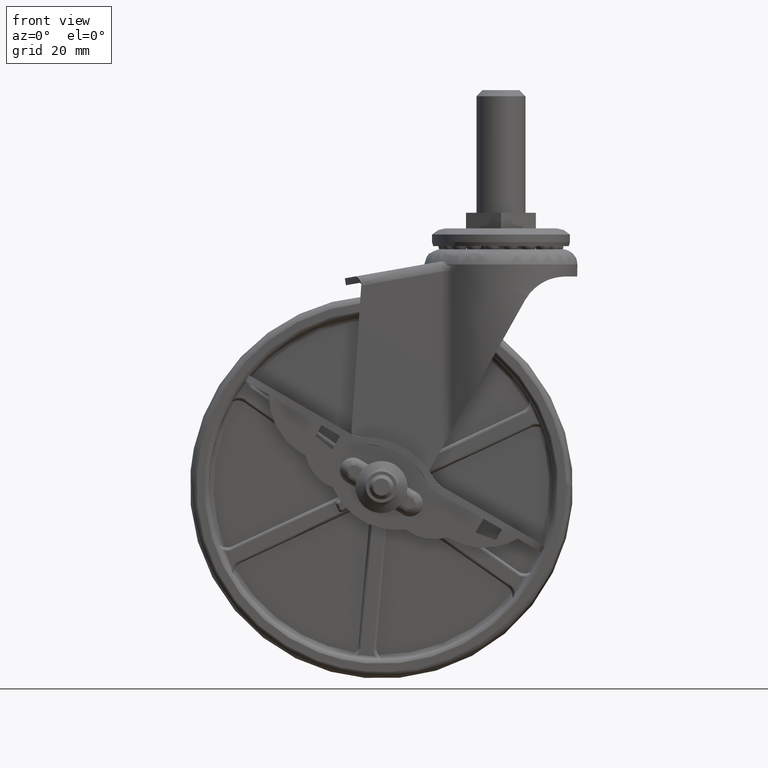
[diagram: clean part render]
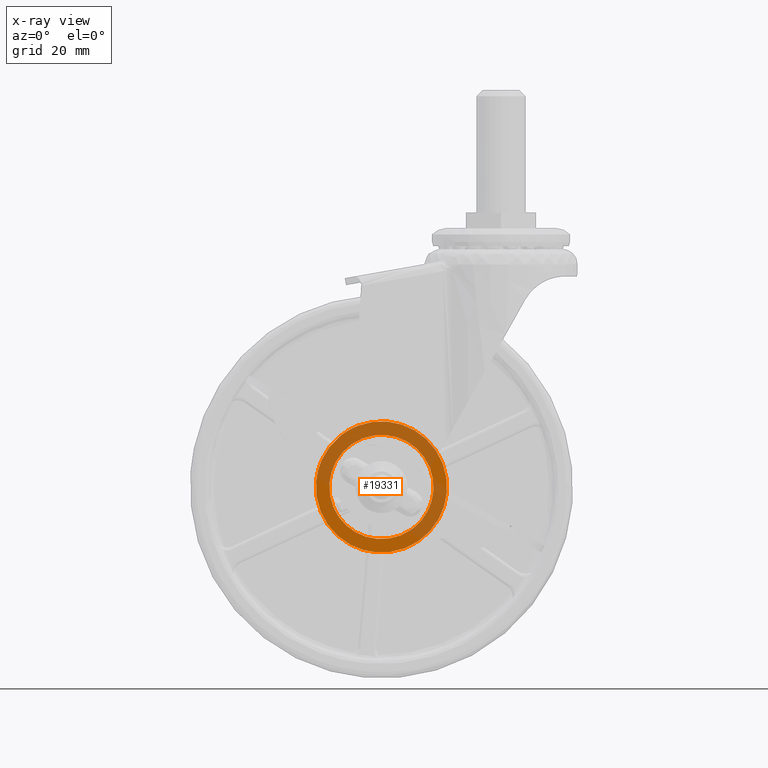
[diagram: x-ray — body ghosted, one internal face saturated and labeled with its STEP entity id]
A machine part, front view, then the same camera in x-ray: the body is ghosted and one INTERNAL B-rep face — a face not visible from any outside direction — is saturated and labeled: STEP entity #19331.
In plain terms, the highlighted face is a freeform B-spline surface patch.
Its self-contained STEP definition (entity closure, byte-faithful):
#77=CARTESIAN_POINT('',(14.056824579169060,12.500000000000000,-9.560661503433785));
#78=VERTEX_POINT('',#77);
#84=CARTESIAN_POINT('',(17.000016999999929,12.500000000000000,0.000001564431849));
#85=VERTEX_POINT('',#84);
#86=CARTESIAN_POINT('',(14.056824579169060,12.500000000000000,-9.560661503433785));
#87=CARTESIAN_POINT('',(14.830389579221370,12.500000000000011,-8.423874364035216));
#88=CARTESIAN_POINT('',(15.757445690454761,12.500000000000000,-6.624295971758071));
#89=CARTESIAN_POINT('',(16.754798499434880,12.500000000000011,-3.384413536177485));
#90=CARTESIAN_POINT('',(17.000388100846958,12.500000000000000,-1.375020451535086));
#91=CARTESIAN_POINT('',(17.000016999999929,12.500000000000000,0.000001564431849));
#92=B_SPLINE_CURVE_WITH_KNOTS('',3,(#86,#87,#88,#89,#90,#91),.UNSPECIFIED.,.F.,.U.,(4,1,1,4),(0.000000023520247,4.124958000080492,6.028764709031389,10.153722685607899),.UNSPECIFIED.);
#93=EDGE_CURVE('',#78,#85,#92,.T.);
#95=CARTESIAN_POINT('',(0.0,12.500000000000000,17.000017000000000));
#96=VERTEX_POINT('',#95);
#97=CARTESIAN_POINT('',(17.000016999999929,12.500000000000000,0.000001564431849));
#98=CARTESIAN_POINT('',(17.000088501829310,12.500000000000011,1.043093436331080));
#99=CARTESIAN_POINT('',(16.781910572769458,12.499999999999989,3.407513438807516));
#100=CARTESIAN_POINT('',(15.786695107292600,12.500000000000011,6.617399320640817));
#101=CARTESIAN_POINT('',(14.103794702827001,12.499999999999980,9.674785278814603));
#102=CARTESIAN_POINT('',(12.092910373964489,12.500000000000060,12.094680875511941));
#103=CARTESIAN_POINT('',(9.826748250220007,12.499999999999989,13.954287149082230));
#104=CARTESIAN_POINT('',(7.606665008723606,12.500000000000011,15.266489551407849));
#105=CARTESIAN_POINT('',(5.545155557431862,12.499999999999989,16.120375016040771));
#106=CARTESIAN_POINT('',(2.990160079393995,12.500000000000000,16.810627192811189));
#107=CARTESIAN_POINT('',(1.182196719883523,12.499999999999989,17.000190547439320));
#108=CARTESIAN_POINT('',(0.0,12.500000000000000,17.000017000000000));
#109=B_SPLINE_CURVE_WITH_KNOTS('',3,(#97,#98,#99,#100,#101,#102,#103,#104,#105,#106,#107,#108),.UNSPECIFIED.,.F.,.U.,(4,1,1,1,1,1,1,1,1,4),(0.000000089456943,3.129316112127196,7.093180419495074,10.013939088643030,13.560464524676270,16.481166050137880,18.776050436197149,21.279546019484471,23.157171833309821,26.703730930838230),.UNSPECIFIED.);
#110=EDGE_CURVE('',#85,#96,#109,.T.);
#112=CARTESIAN_POINT('',(-17.000016999999929,12.500000000000000,-0.000001564431577));
#113=VERTEX_POINT('',#112);
#114=CARTESIAN_POINT('',(0.0,12.500000000000000,17.000017000000000));
#115=CARTESIAN_POINT('',(-0.764928507216314,12.500000000000011,17.000033886563369));
#116=CARTESIAN_POINT('',(-2.503445181024793,12.499999999999980,16.882525629701519));
#117=CARTESIAN_POINT('',(-5.295651987704314,12.500000000000041,16.255660734244579));
#118=CARTESIAN_POINT('',(-7.928825374364769,12.500000000000020,15.126818720430901));
#119=CARTESIAN_POINT('',(-10.509696493095481,12.499999999999980,13.470259288055869));
#120=CARTESIAN_POINT('',(-12.621962278608290,12.500000000000080,11.532191057348889));
#121=CARTESIAN_POINT('',(-14.214019986496711,12.499999999999959,9.412516104392665));
#122=CARTESIAN_POINT('',(-15.346525408220851,12.500000000000060,7.413383224159953));
#123=CARTESIAN_POINT('',(-16.280574114510461,12.500000000000000,5.158654442312675));
#124=CARTESIAN_POINT('',(-16.877870780759881,12.499999999999931,2.573001996810877));
#125=CARTESIAN_POINT('',(-17.000027497723661,12.500000000000110,0.764936966861270));
#126=CARTESIAN_POINT('',(-17.000016999999929,12.500000000000000,-0.000001564431577));
#127=B_SPLINE_CURVE_WITH_KNOTS('',3,(#114,#115,#116,#117,#118,#119,#120,#121,#122,#123,#124,#125,#126),.UNSPECIFIED.,.F.,.U.,(4,1,1,1,1,1,1,1,1,1,4),(0.000000088907239,2.294806783993597,5.215570921175846,8.553554727825809,10.848401945795020,14.394915535664900,17.107059631523850,18.776051676482389,21.279547425061129,24.408893993182751,26.703732694328469),.UNSPECIFIED.);
#128=EDGE_CURVE('',#96,#113,#127,.T.);
#130=CARTESIAN_POINT('',(-10.348954796766771,12.499999999999970,-13.487020629454859));
#131=VERTEX_POINT('',#130);
#132=CARTESIAN_POINT('',(-17.000016999999929,12.500000000000000,-0.000001564431577));
#133=CARTESIAN_POINT('',(-17.000795878141499,12.499999999999980,-1.663295239954721));
#134=CARTESIAN_POINT('',(-16.663942784848579,12.499999999999980,-3.934511940052360));
#135=CARTESIAN_POINT('',(-15.585557784065481,12.500000000000091,-6.914067648718337));
#136=CARTESIAN_POINT('',(-14.496581179661760,12.499999999999730,-9.007891399036508));
#137=CARTESIAN_POINT('',(-12.762614900608540,12.500000000000121,-11.368439830413051));
#138=CARTESIAN_POINT('',(-11.282384758468430,12.499999999999959,-12.771024453503710));
#139=CARTESIAN_POINT('',(-10.348954796766771,12.499999999999970,-13.487020629454859));
#140=B_SPLINE_CURVE_WITH_KNOTS('',3,(#132,#133,#134,#135,#136,#137,#138,#139),.UNSPECIFIED.,.F.,.U.,(4,1,1,1,1,4),(0.000000049912241,4.989549508261563,6.815003654908418,9.492282712349201,12.047922734554771,15.577111114497249),.UNSPECIFIED.);
#141=EDGE_CURVE('',#113,#131,#140,.T.);
#241=CARTESIAN_POINT('',(0.0,12.500000000000000,-17.000017000000000));
#242=VERTEX_POINT('',#241);
#243=CARTESIAN_POINT('',(-10.348954796766771,12.499999999999970,-13.487020629454859));
#244=CARTESIAN_POINT('',(-9.567426034454634,12.499999999999970,-14.086817206335169));
#245=CARTESIAN_POINT('',(-8.046819708454258,12.499999999999989,-15.056103682665480));
#246=CARTESIAN_POINT('',(-5.434865594412972,12.499999999999980,-16.188516306540279));
#247=CARTESIAN_POINT('',(-2.781617528658977,12.500000000000011,-16.853088480130900));
#248=CARTESIAN_POINT('',(-0.869255114620379,12.499999999999980,-17.000054841493000));
#249=CARTESIAN_POINT('',(0.0,12.500000000000000,-17.000017000000000));
#250=B_SPLINE_CURVE_WITH_KNOTS('',3,(#243,#244,#245,#246,#247,#248,#249),.UNSPECIFIED.,.F.,.U.,(4,1,1,1,4),(0.000000027846701,2.955486709498354,5.389437501971185,8.518753505254203,11.126533619358311),.UNSPECIFIED.);
#251=EDGE_CURVE('',#131,#242,#250,.T.);
#253=CARTESIAN_POINT('',(0.0,12.500000000000000,-17.000017000000000));
#254=CARTESIAN_POINT('',(1.551590364471160,12.499999999999959,-17.000509918078290));
#255=CARTESIAN_POINT('',(4.266575646070696,12.500000000000110,-16.625693082371399));
#256=CARTESIAN_POINT('',(7.449548210092927,12.499999999999909,-15.367115757516480));
#257=CARTESIAN_POINT('',(9.819727305280479,12.500000000000130,-13.946250759319630));
#258=CARTESIAN_POINT('',(12.003776240978610,12.499999999999879,-12.177661603304980));
#259=CARTESIAN_POINT('',(13.378303676874500,12.499999999999970,-10.558613635145459));
#260=CARTESIAN_POINT('',(14.056824579169060,12.500000000000000,-9.560661503433785));
#261=B_SPLINE_CURVE_WITH_KNOTS('',3,(#253,#254,#255,#256,#257,#258,#259,#260),.UNSPECIFIED.,.F.,.U.,(4,1,1,1,1,4),(0.000000059628132,4.654670190013080,8.145710984789080,10.214384527628811,12.929629953291149,16.549919586184600),.UNSPECIFIED.);
#262=EDGE_CURVE('',#242,#78,#261,.T.);
#294=CARTESIAN_POINT('',(-16.340091247576989,12.499999999963070,-13.818880137916061));
#295=VERTEX_POINT('',#294);
#296=CARTESIAN_POINT('',(0.0,12.500000000000000,-21.399999999999999));
#297=VERTEX_POINT('',#296);
#298=CARTESIAN_POINT('',(-16.340091247576989,12.499999999963070,-13.818880137916061));
#299=CARTESIAN_POINT('',(-15.527256387589571,12.499999999964890,-14.780140606689180));
#300=CARTESIAN_POINT('',(-13.593216137710460,12.499999999969299,-16.695507885556911));
#301=CARTESIAN_POINT('',(-10.237833658378410,12.499999999976851,-18.944775282857861));
#302=CARTESIAN_POINT('',(-6.919707316386776,12.499999999984350,-20.335995509596501));
#303=CARTESIAN_POINT('',(-3.534428345106884,12.499999999992029,-21.192205263212848));
#304=CARTESIAN_POINT('',(-1.355705322381297,12.499999999996909,-21.400174716334909));
#305=CARTESIAN_POINT('',(0.0,12.500000000000000,-21.399999999999999));
#306=B_SPLINE_CURVE_WITH_KNOTS('',3,(#298,#299,#300,#301,#302,#303,#304,#305),.UNSPECIFIED.,.F.,.U.,(4,1,1,1,1,4),(0.000000042618133,3.776573661700011,8.134202896012603,12.055985663564689,14.525309874219371,18.592390644970550),.UNSPECIFIED.);
#307=EDGE_CURVE('',#295,#297,#306,.T.);
#375=CARTESIAN_POINT('',(-14.730787356479240,12.500000000046940,15.523011087713490));
#376=VERTEX_POINT('',#375);
#382=CARTESIAN_POINT('',(0.0,12.500000000000000,21.399999999999999));
#383=VERTEX_POINT('',#382);
#384=CARTESIAN_POINT('',(0.0,12.500000000000000,21.399999999999999));
#385=CARTESIAN_POINT('',(-1.184693705149166,12.500000000003791,21.400076908171350));
#386=CARTESIAN_POINT('',(-3.807955334809563,12.500000000012120,21.181687720908929));
#387=CARTESIAN_POINT('',(-7.335681804302745,12.500000000023389,20.217205048053000));
#388=CARTESIAN_POINT('',(-11.175414709530431,12.500000000035570,18.414420199404610));
#389=CARTESIAN_POINT('',(-13.442039028653561,12.500000000042871,16.746639200495451));
#390=CARTESIAN_POINT('',(-14.730787356479240,12.500000000046940,15.523011087713490));
#391=B_SPLINE_CURVE_WITH_KNOTS('',3,(#384,#385,#386,#387,#388,#389,#390),.UNSPECIFIED.,.F.,.U.,(4,1,1,1,4),(0.000000012002536,3.554106319497757,7.869820904740450,10.916187428452480,16.247364899525849),.UNSPECIFIED.);
#392=EDGE_CURVE('',#383,#376,#391,.T.);
#394=CARTESIAN_POINT('',(21.399999999999810,12.500000000000000,0.000002866444080));
#395=VERTEX_POINT('',#394);
#396=CARTESIAN_POINT('',(21.399999999999810,12.500000000000000,0.000002866444080));
#397=CARTESIAN_POINT('',(21.400522808061961,12.499999999999989,1.838383613303238));
#398=CARTESIAN_POINT('',(21.036737459557969,12.500000000000030,4.639323120325082));
#399=CARTESIAN_POINT('',(19.747056606147300,12.499999999999980,8.463757025147627));
#400=CARTESIAN_POINT('',(17.966905417928359,12.500000000000030,11.895516089597621));
#401=CARTESIAN_POINT('',(15.358780678502230,12.499999999999980,15.113680661126489));
#402=CARTESIAN_POINT('',(12.302163169697810,12.500000000000050,17.621705381113902));
#403=CARTESIAN_POINT('',(9.192883866228007,12.499999999999870,19.433914116743249));
#404=CARTESIAN_POINT('',(5.164511423251018,12.500000000000000,20.959664685641950));
#405=CARTESIAN_POINT('',(1.925928137675801,12.500000000000140,21.400697251023299));
#406=CARTESIAN_POINT('',(0.0,12.500000000000000,21.399999999999999));
#407=B_SPLINE_CURVE_WITH_KNOTS('',3,(#396,#397,#398,#399,#400,#401,#402,#403,#404,#405,#406),.UNSPECIFIED.,.F.,.U.,(4,1,1,1,1,1,1,1,4),(0.000000048162804,5.514978762915774,8.403813868590266,12.080495931228199,17.070243452951260,20.746901163304660,23.898333314129580,27.837653241510001,33.615250697942088),.UNSPECIFIED.);
#408=EDGE_CURVE('',#395,#383,#407,.T.);
#410=CARTESIAN_POINT('',(0.0,12.500000000000000,-21.399999999999999));
#411=CARTESIAN_POINT('',(1.663273058777446,12.500000000000000,-21.400393738145521));
#412=CARTESIAN_POINT('',(4.464343352869333,12.499999999999959,-21.071677085365991));
#413=CARTESIAN_POINT('',(7.973570127486228,12.500000000000080,-19.936156368197619));
#414=CARTESIAN_POINT('',(10.574516414718561,12.499999999999879,-18.666629413298320));
#415=CARTESIAN_POINT('',(13.294750069542379,12.500000000000060,-16.897184111763959));
#416=CARTESIAN_POINT('',(15.694220561348351,12.499999999999970,-14.695452155900879));
#417=CARTESIAN_POINT('',(17.798481305191551,12.500000000000020,-11.998804956188730));
#418=CARTESIAN_POINT('',(19.124443858432809,12.499999999999989,-9.723715092577796));
#419=CARTESIAN_POINT('',(20.333135411440910,12.500000000000011,-6.904273931591852));
#420=CARTESIAN_POINT('',(21.181404590062890,12.499999999999989,-3.764161113291533));
#421=CARTESIAN_POINT('',(21.400080990550830,12.500000000000000,-1.225533618910089));
#422=CARTESIAN_POINT('',(21.399999999999810,12.500000000000000,0.000002866444080));
#423=B_SPLINE_CURVE_WITH_KNOTS('',3,(#410,#411,#412,#413,#414,#415,#416,#417,#418,#419,#420,#421,#422),.UNSPECIFIED.,.F.,.U.,(4,1,1,1,1,1,1,1,1,1,4),(0.000000047152412,4.989739262736318,8.403814675555854,11.030022834083541,13.656200504297511,18.120718657663542,20.746903155440219,23.898335611210442,25.999306248798110,29.938623778507019,33.615253929112981),.UNSPECIFIED.);
#424=EDGE_CURVE('',#297,#395,#423,.T.);
#443=CARTESIAN_POINT('',(-21.399999999999810,12.500000000000000,-0.000002866443794));
#444=VERTEX_POINT('',#443);
#445=CARTESIAN_POINT('',(-21.399999999999810,12.500000000000000,-0.000002866443794));
#446=CARTESIAN_POINT('',(-21.400082394615652,12.499999999996851,-1.173652313909800));
#447=CARTESIAN_POINT('',(-21.225769154285661,12.499999999991310,-3.286203210252649));
#448=CARTESIAN_POINT('',(-20.509626961048621,12.499999999982981,-6.339847524983855));
#449=CARTESIAN_POINT('',(-19.129077919956480,12.499999999973520,-9.927084345816967));
#450=CARTESIAN_POINT('',(-17.553157247424188,12.499999999966990,-12.385357754916241));
#451=CARTESIAN_POINT('',(-16.340091247576989,12.499999999963070,-13.818880137916061));
#452=B_SPLINE_CURVE_WITH_KNOTS('',3,(#445,#446,#447,#448,#449,#450,#451),.UNSPECIFIED.,.F.,.U.,(4,1,1,1,4),(0.000000023520789,3.520958515661905,6.337750573083685,9.389223667819364,15.022759431280090),.UNSPECIFIED.);
#453=EDGE_CURVE('',#444,#295,#452,.T.);
#455=CARTESIAN_POINT('',(-14.730787356479240,12.500000000046940,15.523011087713490));
#456=CARTESIAN_POINT('',(-15.879277560403350,12.500000000043670,14.433546859976429));
#457=CARTESIAN_POINT('',(-17.639192761217071,12.500000000037289,12.345966029827579));
#458=CARTESIAN_POINT('',(-19.367987337248319,12.500000000027971,9.258053407883484));
#459=CARTESIAN_POINT('',(-20.427452815726379,12.500000000019901,6.559207697550460));
#460=CARTESIAN_POINT('',(-21.191421082765711,12.500000000010820,3.573018503899843));
#461=CARTESIAN_POINT('',(-21.400130739208741,12.500000000003970,1.311634353780562));
#462=CARTESIAN_POINT('',(-21.399999999999810,12.500000000000000,-0.000002866443794));
#463=B_SPLINE_CURVE_WITH_KNOTS('',3,(#455,#456,#457,#458,#459,#460,#461,#462),.UNSPECIFIED.,.F.,.U.,(4,1,1,1,1,4),(0.000000034337990,4.749009456961746,8.141167390707723,10.583488410390171,13.432911015680711,17.367803151776162),.UNSPECIFIED.);
#464=EDGE_CURVE('',#376,#444,#463,.T.);
#19310=CARTESIAN_POINT('',(-23.537859515269300,12.500000000000000,-23.537859515269510));
#19311=CARTESIAN_POINT('',(-23.537859515269300,12.500000000000000,23.537861045916799));
#19312=CARTESIAN_POINT('',(23.537861045916578,12.500000000000000,-23.537859515269510));
#19313=CARTESIAN_POINT('',(23.537861045916578,12.500000000000000,23.537861045916799));
#19314=B_SPLINE_SURFACE_WITH_KNOTS('',1,1,((#19310,#19312),(#19311,#19313)),.UNSPECIFIED.,.F.,.F.,.U.,(2,2),(2,2),(0.0,47.075720561186301),(0.0,47.075720561185882),.UNSPECIFIED.);
#19315=ORIENTED_EDGE('',*,*,#424,.T.);
#19316=ORIENTED_EDGE('',*,*,#408,.T.);
#19317=ORIENTED_EDGE('',*,*,#392,.T.);
#19318=ORIENTED_EDGE('',*,*,#464,.T.);
#19319=ORIENTED_EDGE('',*,*,#453,.T.);
#19320=ORIENTED_EDGE('',*,*,#307,.T.);
#19321=EDGE_LOOP('',(#19315,#19316,#19317,#19318,#19319,#19320));
#19322=FACE_OUTER_BOUND('',#19321,.T.);
#19323=ORIENTED_EDGE('',*,*,#110,.F.);
#19324=ORIENTED_EDGE('',*,*,#93,.F.);
#19325=ORIENTED_EDGE('',*,*,#262,.F.);
#19326=ORIENTED_EDGE('',*,*,#251,.F.);
#19327=ORIENTED_EDGE('',*,*,#141,.F.);
#19328=ORIENTED_EDGE('',*,*,#128,.F.);
#19329=EDGE_LOOP('',(#19323,#19324,#19325,#19326,#19327,#19328));
#19330=FACE_BOUND('',#19329,.T.);
#19331=ADVANCED_FACE('',(#19322,#19330),#19314,.F.);